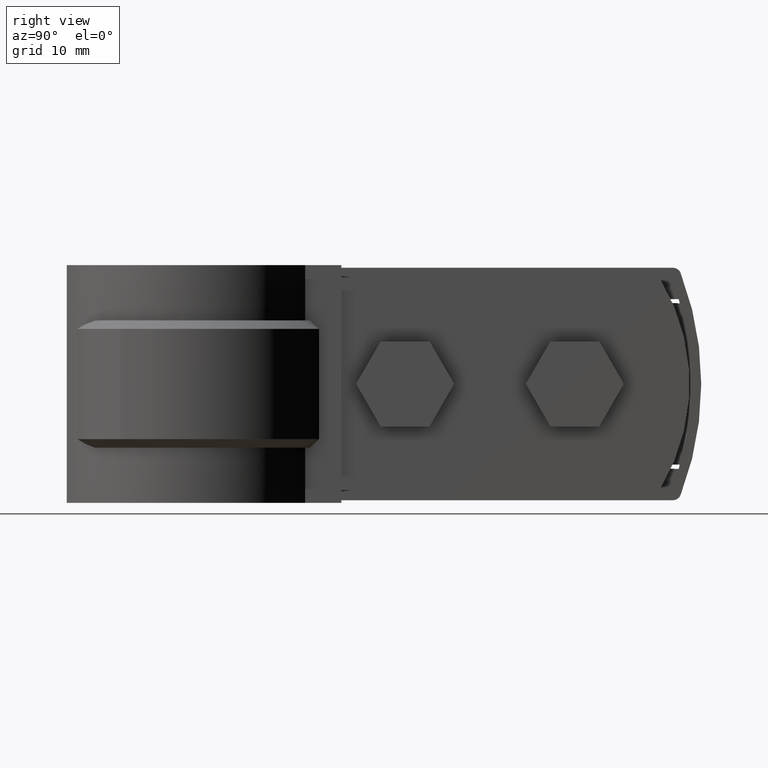
[diagram: clean part render]
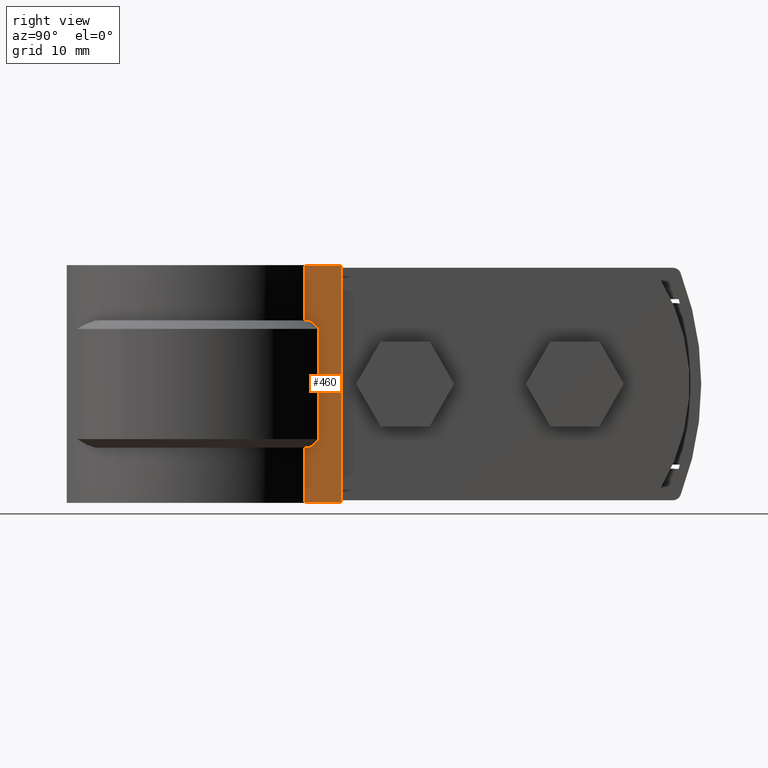
[diagram: same view with one face highlighted and labeled with its STEP entity id]
A machine part, right view. The second image highlights one B-rep face of the part: STEP entity #460.
In plain terms, the highlighted planar face has unit normal (-1, 0, 0).
Its self-contained STEP definition (entity closure, byte-faithful):
#460 = ADVANCED_FACE( '', ( #909 ), #910, .F. );
#909 = FACE_OUTER_BOUND( '', #2021, .T. );
#910 = PLANE( '', #2022 );
#2021 = EDGE_LOOP( '', ( #4603, #4604, #4605, #4606, #4607, #4608, #4609, #4610, #4611, #4612 ) );
#2022 = AXIS2_PLACEMENT_3D( '', #4613, #4614, #4615 );
#4603 = ORIENTED_EDGE( '', *, *, #6846, .F. );
#4604 = ORIENTED_EDGE( '', *, *, #6839, .T. );
#4605 = ORIENTED_EDGE( '', *, *, #6806, .F. );
#4606 = ORIENTED_EDGE( '', *, *, #6824, .T. );
#4607 = ORIENTED_EDGE( '', *, *, #6821, .T. );
#4608 = ORIENTED_EDGE( '', *, *, #6827, .T. );
#4609 = ORIENTED_EDGE( '', *, *, #6817, .T. );
#4610 = ORIENTED_EDGE( '', *, *, #6826, .F. );
#4611 = ORIENTED_EDGE( '', *, *, #6813, .F. );
#4612 = ORIENTED_EDGE( '', *, *, #6660, .F. );
#4613 = CARTESIAN_POINT( '', ( 6.10000000000001, 18.2900000000000, -26.5000000000000 ) );
#4614 = DIRECTION( '', ( -1.00000000000000, 6.07153216591882E-017, 0.000000000000000 ) );
#4615 = DIRECTION( '', ( 6.07153216591882E-017, 1.00000000000000, 0.000000000000000 ) );
#6660 = EDGE_CURVE( '', #7673, #7675, #7676, .T. );
#6806 = EDGE_CURVE( '', #7923, #7925, #7926, .T. );
#6813 = EDGE_CURVE( '', #7675, #7915, #7937, .T. );
#6817 = EDGE_CURVE( '', #7943, #7944, #7945, .T. );
#6821 = EDGE_CURVE( '', #7951, #7952, #7953, .T. );
#6824 = EDGE_CURVE( '', #7923, #7951, #7956, .T. );
#6826 = EDGE_CURVE( '', #7915, #7944, #7958, .T. );
#6827 = EDGE_CURVE( '', #7952, #7943, #7959, .F. );
#6839 = EDGE_CURVE( '', #7975, #7925, #7976, .T. );
#6846 = EDGE_CURVE( '', #7975, #7673, #7988, .T. );
#7673 = VERTEX_POINT( '', #9893 );
#7675 = VERTEX_POINT( '', #9896 );
#7676 = LINE( '', #9897, #9898 );
#7915 = VERTEX_POINT( '', #10856 );
#7923 = VERTEX_POINT( '', #10871 );
#7925 = VERTEX_POINT( '', #10873 );
#7926 = LINE( '', #10874, #10875 );
#7937 = LINE( '', #10893, #10894 );
#7943 = VERTEX_POINT( '', #10901 );
#7944 = VERTEX_POINT( '', #10902 );
#7945 = B_SPLINE_CURVE_WITH_KNOTS( '', 3, ( #10903, #10904, #10905, #10906 ), .UNSPECIFIED., .F., .F., ( 4, 4 ), ( 1.73472347597681E-018, 0.00147541618868421 ), .UNSPECIFIED. );
#7951 = VERTEX_POINT( '', #10913 );
#7952 = VERTEX_POINT( '', #10914 );
#7953 = B_SPLINE_CURVE_WITH_KNOTS( '', 3, ( #10915, #10916, #10917, #10918 ), .UNSPECIFIED., .F., .F., ( 4, 4 ), ( 0.000000000000000, 0.00147541618868420 ), .UNSPECIFIED. );
#7956 = LINE( '', #10921, #10922 );
#7958 = LINE( '', #10924, #10925 );
#7959 = LINE( '', #10926, #10927 );
#7975 = VERTEX_POINT( '', #10945 );
#7976 = LINE( '', #10946, #10947 );
#7988 = LINE( '', #10962, #10963 );
#9893 = CARTESIAN_POINT( '', ( 6.09999999999999, 17.6997530837310, -26.5000000000000 ) );
#9896 = CARTESIAN_POINT( '', ( 6.10000000000001, 13.4240465210755, -26.5000000000000 ) );
#9897 = CARTESIAN_POINT( '', ( 6.10000000000001, 18.2900000000000, -26.5000000000000 ) );
#9898 = VECTOR( '', #12622, 1000.00000000000 );
#10856 = CARTESIAN_POINT( '', ( 6.10000000000001, 13.4240465210755, -20.0000000000000 ) );
#10871 = CARTESIAN_POINT( '', ( 6.10000000000001, 13.4240465210755, -5.00000000000000 ) );
#10873 = CARTESIAN_POINT( '', ( 6.10000000000001, 13.4240465210755, 1.50000000000000 ) );
#10874 = CARTESIAN_POINT( '', ( 6.10000000000001, 13.4240465210755, -26.5000000000000 ) );
#10875 = VECTOR( '', #12770, 1000.00000000000 );
#10893 = CARTESIAN_POINT( '', ( 6.10000000000001, 13.4240465210755, -26.5000000000000 ) );
#10894 = VECTOR( '', #12781, 1000.00000000000 );
#10901 = CARTESIAN_POINT( '', ( 6.10000000000001, 15.0562287774861, -19.0000000000000 ) );
#10902 = CARTESIAN_POINT( '', ( 6.10000000000001, 13.9714002519432, -20.0000000000000 ) );
#10903 = CARTESIAN_POINT( '', ( 6.10000000000000, 15.0562287774861, -19.0000000000000 ) );
#10904 = CARTESIAN_POINT( '', ( 6.10000000000000, 14.6955225524098, -19.3343105845621 ) );
#10905 = CARTESIAN_POINT( '', ( 6.10000000000001, 14.3339743426226, -19.6677161205729 ) );
#10906 = CARTESIAN_POINT( '', ( 6.10000000000001, 13.9714002519432, -20.0000000000000 ) );
#10913 = CARTESIAN_POINT( '', ( 6.10000000000001, 13.9714002519432, -5.00000000000000 ) );
#10914 = CARTESIAN_POINT( '', ( 6.10000000000001, 15.0562287774861, -5.99999999999999 ) );
#10915 = CARTESIAN_POINT( '', ( 6.10000000000001, 13.9714002519432, -5.00000000000000 ) );
#10916 = CARTESIAN_POINT( '', ( 6.10000000000001, 14.3339743426226, -5.33228387942706 ) );
#10917 = CARTESIAN_POINT( '', ( 6.10000000000001, 14.6955225524098, -5.66568941543787 ) );
#10918 = CARTESIAN_POINT( '', ( 6.10000000000001, 15.0562287774861, -6.00000000000000 ) );
#10921 = CARTESIAN_POINT( '', ( 6.10000000000001, 18.2900000000000, -5.00000000000000 ) );
#10922 = VECTOR( '', #12802, 1000.00000000000 );
#10924 = CARTESIAN_POINT( '', ( 6.10000000000001, 18.2900000000000, -20.0000000000000 ) );
#10925 = VECTOR( '', #12806, 1000.00000000000 );
#10926 = CARTESIAN_POINT( '', ( 6.10000000000001, 15.0562287774861, -20.0000000000000 ) );
#10927 = VECTOR( '', #12807, 1000.00000000000 );
#10945 = CARTESIAN_POINT( '', ( 6.09999999999999, 17.6997530837310, 1.50000000000000 ) );
#10946 = CARTESIAN_POINT( '', ( 6.10000000000001, 18.2900000000000, 1.50000000000000 ) );
#10947 = VECTOR( '', #12837, 1000.00000000000 );
#10962 = CARTESIAN_POINT( '', ( 6.10000000000001, 17.6997530837310, -26.5000000000000 ) );
#10963 = VECTOR( '', #12850, 1000.00000000000 );
#12622 = DIRECTION( '', ( -6.07153216591882E-017, -1.00000000000000, 0.000000000000000 ) );
#12770 = DIRECTION( '', ( 0.000000000000000, 0.000000000000000, 1.00000000000000 ) );
#12781 = DIRECTION( '', ( 0.000000000000000, 0.000000000000000, 1.00000000000000 ) );
#12802 = DIRECTION( '', ( 6.07153216591882E-017, 1.00000000000000, 0.000000000000000 ) );
#12806 = DIRECTION( '', ( 6.07153216591882E-017, 1.00000000000000, 0.000000000000000 ) );
#12807 = DIRECTION( '', ( 0.000000000000000, 0.000000000000000, 1.00000000000000 ) );
#12837 = DIRECTION( '', ( -6.07153216591882E-017, -1.00000000000000, 0.000000000000000 ) );
#12850 = DIRECTION( '', ( 0.000000000000000, 0.000000000000000, -1.00000000000000 ) );